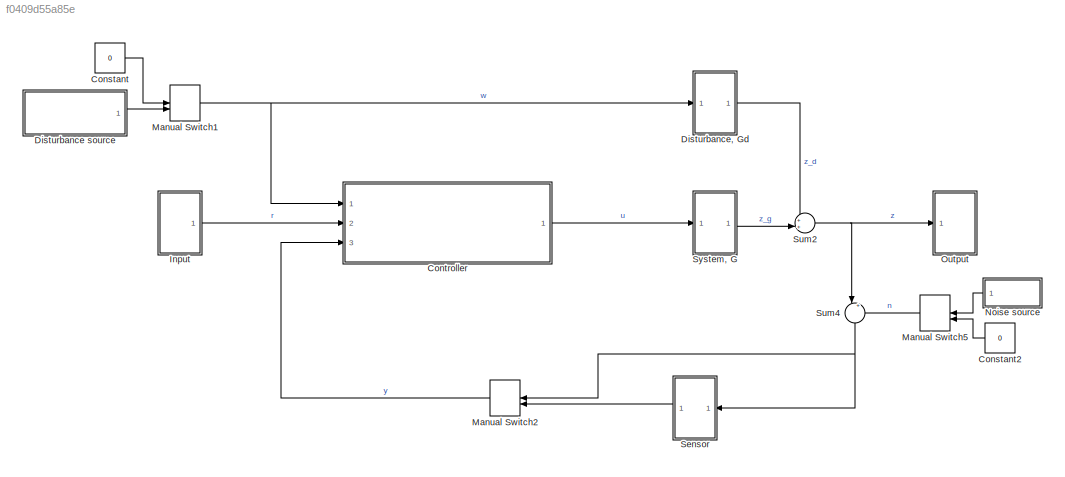
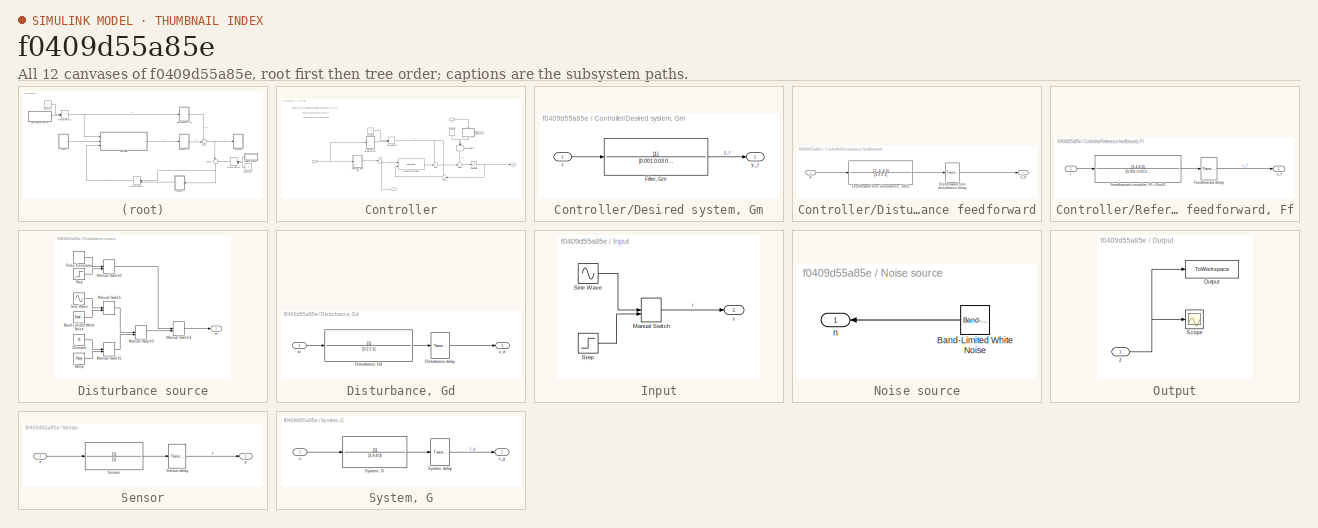
[diagram: thumbnail index - all 12 canvases of the model, root first then tree order]
MODEL slx_f0409d55a85e
KIND model
CONFIG AbsTol = auto
CONFIG EnableMultiTasking = off
CONFIG FixedStep = auto
CONFIG MaxStep = auto
CONFIG MinStep = auto
CONFIG RelTol = 1e-3
CONFIG SampleTimeConstraint = Unconstrained
CONFIG Solver = VariableStepAuto
CONFIG SolverName = VariableStepAuto
CONFIG StartTime = 0.0
CONFIG StopTime = 60
BLOCK [Constant] Constant
  Value = 0
BLOCK [Constant] Constant2
  Value = 0
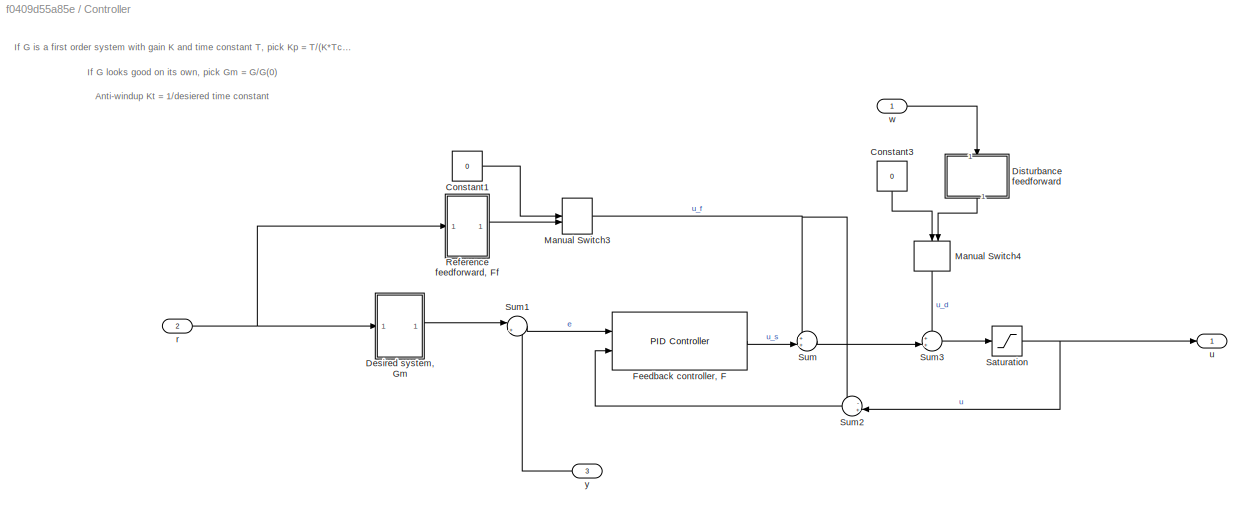
BLOCK [SubSystem] Controller
  Ports = [3, 1]
  RequestExecContextInheritance = off
BLOCK [Constant] Controller/Constant1
  Value = 0
BLOCK [Constant] Controller/Constant3
  NameLocation = left
  Value = 0
BLOCK [SubSystem] Controller/Desired system, Gm
  Ports = [1, 1]
  RequestExecContextInheritance = off
BLOCK [TransferFcn] Controller/Desired system, Gm/Filter, Gm
  Denominator = [0.001 0.03 0.3 1]
BLOCK [Inport] Controller/Desired system, Gm/r
BLOCK [Outport] Controller/Desired system, Gm/y_r
BLOCK [SubSystem] Controller/Disturbance feedforward
  NameLocation = right
  Ports = [1, 1]
  RequestExecContextInheritance = off
BLOCK [TransportDelay] Controller/Disturbance feedforward/Feedforward from disturbance delay 
  DelayTime = 0
  NameLocation = top
  Ports = [1, 1]
BLOCK [TransferFcn] Controller/Disturbance feedforward/Feedforward from disturbance, -Gd//G
  Denominator = [3 2 2 1]
  NameLocation = top
  Numerator = [-1 -4 -4 0]
BLOCK [Outport] Controller/Disturbance feedforward/u_d
BLOCK [Inport] Controller/Disturbance feedforward/w
BLOCK [Reference] Controller/Feedback controller, F  REF=simulink/Continuous/PID Controller
  Ports = [2, 1]
  SourceBlock = simulink/Continuous/PID Controller
  SourceProductBaseCode = SL
  SourceType = PID 1dof
BLOCK [ManualSwitch] Controller/Manual Switch3
BLOCK [ManualSwitch] Controller/Manual Switch4
  NameLocation = left
BLOCK [SubSystem] Controller/Reference feedforward, Ff
  Ports = [1, 1]
  RequestExecContextInheritance = off
BLOCK [TransferFcn] Controller/Reference feedforward, Ff/Feedforward controller, Ff = Gm//G 
  Denominator = [0.001 0.03 0.3 1]
  Numerator = [1 4 4 0]
BLOCK [TransportDelay] Controller/Reference feedforward, Ff/Feedforward delay
  DelayTime = 0
  Ports = [1, 1]
BLOCK [Inport] Controller/Reference feedforward, Ff/r
BLOCK [Outport] Controller/Reference feedforward, Ff/u_f
BLOCK [Saturate] Controller/Saturation
  UpperLimit = 10
BLOCK [Sum] Controller/Sum
  Inputs = ++|
  Ports = [2, 1]
BLOCK [Sum] Controller/Sum1
  Inputs = |+-
  Ports = [2, 1]
BLOCK [Sum] Controller/Sum2
  Inputs = -+|
  Ports = [2, 1]
BLOCK [Sum] Controller/Sum3
  Inputs = ++|
  Ports = [2, 1]
BLOCK [Inport] Controller/r
  Port = 2
BLOCK [Outport] Controller/u
BLOCK [Inport] Controller/w
BLOCK [Inport] Controller/y
  Port = 3
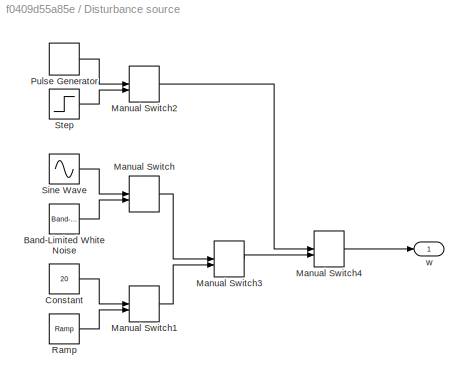
BLOCK [SubSystem] Disturbance source
  NameLocation = top
  Ports = [0, 1]
  RequestExecContextInheritance = off
BLOCK [Reference] Disturbance source/Band-Limited White Noise  REF=simulink/Sources/Band-Limited
White Noise
  Ports = [0, 1]
  SourceBlock = simulink/Sources/Band-Limited\nWhite Noise
  SourceProductBaseCode = SL
  SourceType = Band-Limited White Noise.
BLOCK [Constant] Disturbance source/Constant
  Value = 20
BLOCK [ManualSwitch] Disturbance source/Manual Switch
BLOCK [ManualSwitch] Disturbance source/Manual Switch1
BLOCK [ManualSwitch] Disturbance source/Manual Switch2
BLOCK [ManualSwitch] Disturbance source/Manual Switch3
  CurrentSetting = 0
BLOCK [ManualSwitch] Disturbance source/Manual Switch4
  CurrentSetting = 0
BLOCK [DiscretePulseGenerator] Disturbance source/Pulse Generator
  Period = 10
  Ports = [0, 1]
  PulseType = Time based
  PulseWidth = 5
BLOCK [Reference] Disturbance source/Ramp  REF=simulink/Sources/Ramp
  Ports = [0, 1]
  SourceBlock = simulink/Sources/Ramp
  SourceProductBaseCode = SL
  SourceType = Ramp
BLOCK [Sin] Disturbance source/Sine Wave
  Ports = [0, 1]
  SampleTime = 0
BLOCK [Step] Disturbance source/Step
  SampleTime = 0
BLOCK [Outport] Disturbance source/w
BLOCK [SubSystem] Disturbance, Gd
  Ports = [1, 1]
  RequestExecContextInheritance = off
BLOCK [TransportDelay] Disturbance, Gd/Disturbance delay
  DelayTime = 0
  Ports = [1, 1]
BLOCK [TransferFcn] Disturbance, Gd/Disturbance, Gd
  Denominator = [3 2 2 1]
BLOCK [Inport] Disturbance, Gd/w
BLOCK [Outport] Disturbance, Gd/z_d
BLOCK [SubSystem] Input
  Ports = [0, 1]
  RequestExecContextInheritance = off
BLOCK [ManualSwitch] Input/Manual Switch
  CurrentSetting = 0
BLOCK [Sin] Input/Sine Wave
  Amplitude = 10
  Bias = 20
  Ports = [0, 1]
  SampleTime = 0
BLOCK [Step] Input/Step
  After = 20
  SampleTime = 0
  Time = 10
BLOCK [Outport] Input/r
BLOCK [ManualSwitch] Manual Switch1
BLOCK [ManualSwitch] Manual Switch2
BLOCK [ManualSwitch] Manual Switch5
  CurrentSetting = 0
BLOCK [SubSystem] Noise source
  Ports = [0, 1]
  RequestExecContextInheritance = off
BLOCK [Reference] Noise source/Band-Limited White Noise  REF=simulink/Sources/Band-Limited
White Noise
  Ports = [0, 1]
  SourceBlock = simulink/Sources/Band-Limited\nWhite Noise
  SourceProductBaseCode = SL
  SourceType = Band-Limited White Noise.
BLOCK [Outport] Noise source/n
BLOCK [SubSystem] Output
  Ports = [1]
  RequestExecContextInheritance = off
BLOCK [ToWorkspace] Output/Output
  FixptAsFi = on
  MaxDataPoints = inf
  Ports = [1]
  SampleTime = -1
  VariableName = z
BLOCK [Scope] Output/Scope
  Floating = off
  NumInputPorts = 1
  Ports = [1]
  ScopeSpecificationString = Simulink.scopes.TimeScopeBlockCfg('CurrentConfiguration', extmgr.ConfigurationSet(extmgr.Configuration('Core','General UI',true),extmgr.Configuration('Core','Source UI',true),extmgr.Configuration('Sources','WiredSimulink',true),extmgr.Configuration('Visuals','Time Domain',true,'SerializedDisplays',{struct('MinYLimReal','-10.66301','MaxYLimReal','28.46402','YLabelReal','','MinYLimMag','0.00000','Ma...<+1394ch>
BLOCK [Inport] Output/z
BLOCK [SubSystem] Sensor
  Ports = [1, 1]
  RequestExecContextInheritance = off
BLOCK [TransferFcn] Sensor/Sensor
  Denominator = [1]
BLOCK [TransportDelay] Sensor/Sensor delay
  DelayTime = 0
  Ports = [1, 1]
BLOCK [Outport] Sensor/y
BLOCK [Inport] Sensor/z
BLOCK [Sum] Sum2
  Inputs = ++|
  Ports = [2, 1]
BLOCK [Sum] Sum4
  Inputs = |++
  NameLocation = left
  Ports = [2, 1]
BLOCK [SubSystem] System, G
  Ports = [1, 1]
  RequestExecContextInheritance = off
BLOCK [TransportDelay] System, G/System delay
  DelayTime = 0
  Ports = [1, 1]
BLOCK [TransferFcn] System, G/System, G
  Denominator = [1 4 4 0]
BLOCK [Inport] System, G/u
BLOCK [Outport] System, G/z_g
ANNOTATION Controller: Anti-windup Kt = 1/desiered time constant
ANNOTATION Controller: If G is a first order system with gain K and time constant T, pick Kp = T/(K*Tc) and Ki = 1/(K*Tc) where Tc is desiered time contant
ANNOTATION Controller: If G looks good on its own, pick Gm = G/G(0)
LINE Constant2:1 -> Manual Switch5:2
LINE Constant:1 -> Manual Switch1:1
LINE Controller/Constant1:1 -> Controller/Manual Switch3:1
LINE Controller/Constant3:1 -> Controller/Manual Switch4:1
LINE Controller/Desired system, Gm/Filter, Gm:1 -> Controller/Desired system, Gm/y_r:1
LINE Controller/Desired system, Gm/r:1 -> Controller/Desired system, Gm/Filter, Gm:1
LINE Controller/Desired system, Gm:1 -> Controller/Sum1:1
LINE Controller/Disturbance feedforward/Feedforward from disturbance delay :1 -> Controller/Disturbance feedforward/u_d:1
LINE Controller/Disturbance feedforward/Feedforward from disturbance, -Gd//G:1 -> Controller/Disturbance feedforward/Feedforward from disturbance delay :1
LINE Controller/Disturbance feedforward/w:1 -> Controller/Disturbance feedforward/Feedforward from disturbance, -Gd//G:1
LINE Controller/Disturbance feedforward:1 -> Controller/Manual Switch4:2
LINE Controller/Feedback controller, F:1 -> Controller/Sum:2
NET Controller/Manual Switch3:1 -> Controller/Sum2:1, Controller/Sum:1
LINE Controller/Manual Switch4:1 -> Controller/Sum3:1
LINE Controller/Reference feedforward, Ff/Feedforward controller, Ff = Gm//G :1 -> Controller/Reference feedforward, Ff/Feedforward delay:1
LINE Controller/Reference feedforward, Ff/Feedforward delay:1 -> Controller/Reference feedforward, Ff/u_f:1
LINE Controller/Reference feedforward, Ff/r:1 -> Controller/Reference feedforward, Ff/Feedforward controller, Ff = Gm//G :1
LINE Controller/Reference feedforward, Ff:1 -> Controller/Manual Switch3:2
NET Controller/Saturation:1 -> Controller/Sum2:2, Controller/u:1
LINE Controller/Sum1:1 -> Controller/Feedback controller, F:1
LINE Controller/Sum2:1 -> Controller/Feedback controller, F:2
LINE Controller/Sum3:1 -> Controller/Saturation:1
LINE Controller/Sum:1 -> Controller/Sum3:2
NET Controller/r:1 -> Controller/Desired system, Gm:1, Controller/Reference feedforward, Ff:1
LINE Controller/w:1 -> Controller/Disturbance feedforward:1
LINE Controller/y:1 -> Controller/Sum1:2
LINE Controller:1 -> System, G:1
LINE Disturbance source/Band-Limited White Noise:1 -> Disturbance source/Manual Switch:2
LINE Disturbance source/Constant:1 -> Disturbance source/Manual Switch1:1
LINE Disturbance source/Manual Switch1:1 -> Disturbance source/Manual Switch3:2
LINE Disturbance source/Manual Switch2:1 -> Disturbance source/Manual Switch4:1
LINE Disturbance source/Manual Switch3:1 -> Disturbance source/Manual Switch4:2
LINE Disturbance source/Manual Switch4:1 -> Disturbance source/w:1
LINE Disturbance source/Manual Switch:1 -> Disturbance source/Manual Switch3:1
LINE Disturbance source/Pulse Generator:1 -> Disturbance source/Manual Switch2:1
LINE Disturbance source/Ramp:1 -> Disturbance source/Manual Switch1:2
LINE Disturbance source/Sine Wave:1 -> Disturbance source/Manual Switch:1
LINE Disturbance source/Step:1 -> Disturbance source/Manual Switch2:2
LINE Disturbance source:1 -> Manual Switch1:2
LINE Disturbance, Gd/Disturbance delay:1 -> Disturbance, Gd/z_d:1
LINE Disturbance, Gd/Disturbance, Gd:1 -> Disturbance, Gd/Disturbance delay:1
LINE Disturbance, Gd/w:1 -> Disturbance, Gd/Disturbance, Gd:1
LINE Disturbance, Gd:1 -> Sum2:1
LINE Input/Manual Switch:1 -> Input/r:1
LINE Input/Sine Wave:1 -> Input/Manual Switch:1
LINE Input/Step:1 -> Input/Manual Switch:2
LINE Input:1 -> Controller:2
NET Manual Switch1:1 -> Controller:1, Disturbance, Gd:1
LINE Manual Switch2:1 -> Controller:3
LINE Manual Switch5:1 -> Sum4:2
LINE Noise source/Band-Limited White Noise:1 -> Noise source/n:1
LINE Noise source:1 -> Manual Switch5:1
NET Output/z:1 -> Output/Output:1, Output/Scope:1
LINE Sensor/Sensor delay:1 -> Sensor/y:1
LINE Sensor/Sensor:1 -> Sensor/Sensor delay:1
LINE Sensor/z:1 -> Sensor/Sensor:1
LINE Sensor:1 -> Manual Switch2:2
NET Sum2:1 -> Output:1, Sum4:1
NET Sum4:1 -> Manual Switch2:1, Sensor:1
LINE System, G/System delay:1 -> System, G/z_g:1
LINE System, G/System, G:1 -> System, G/System delay:1
LINE System, G/u:1 -> System, G/System, G:1
LINE System, G:1 -> Sum2:2
note: NET lines group one-source signal fan-out (src -> all destinations, sorted); 1:1 wires keep LINE
